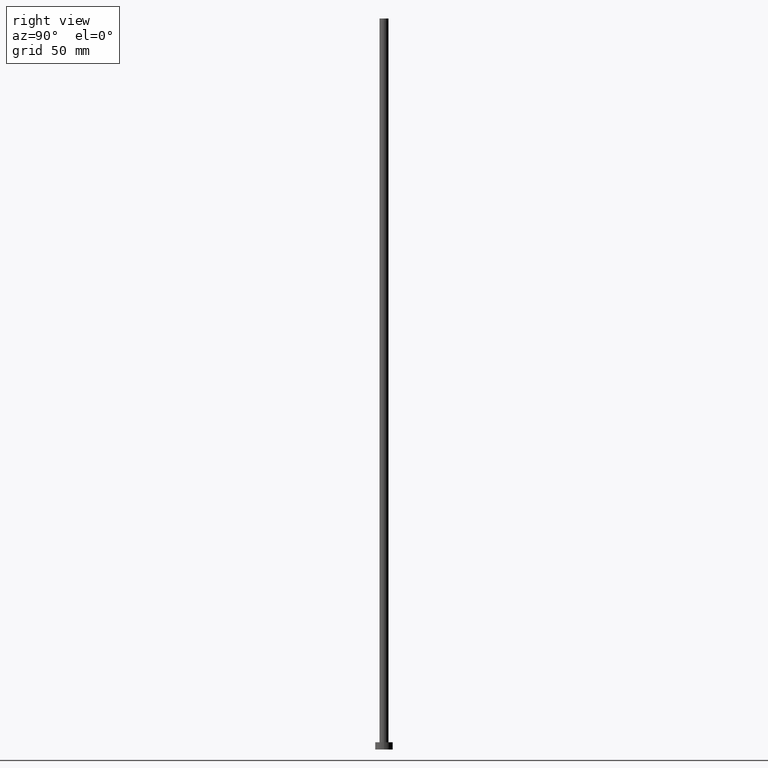
[diagram: clean part render]
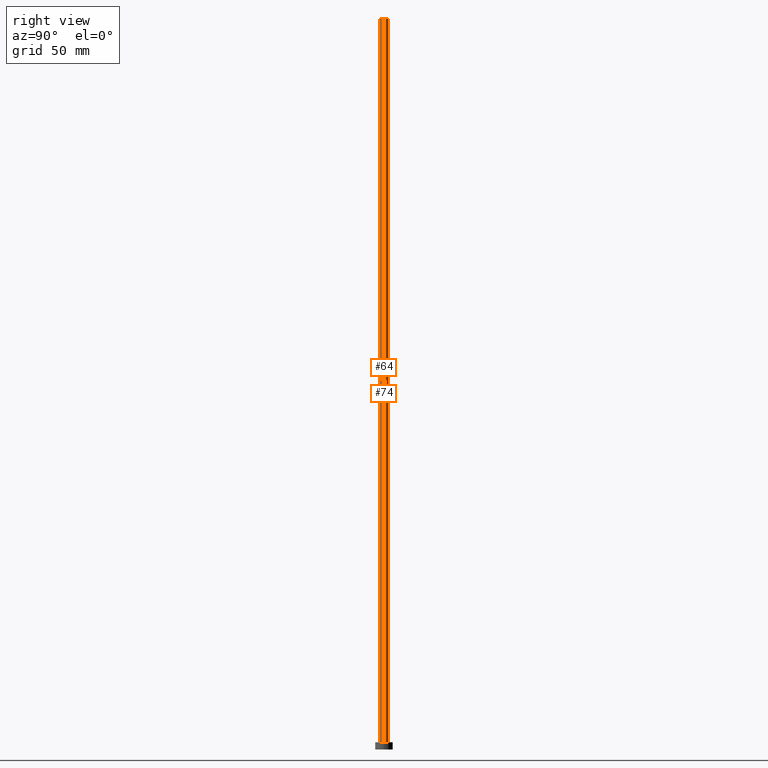
[diagram: same view with one multi-face feature highlighted, each face labeled with its STEP entity id]
A machine part, right view. The highlighted faces form ONE feature: a constant-radius fillet chain: 2 tangent blend faces with common blend radius 3.1 mm. The faces share edges in the B-rep.
Their STEP definitions:
[1] entity #74 (Cylinder):
#3 = AXIS2_PLACEMENT_3D ( 'NONE', #55, #79, #169 ) ;
#4 = LINE ( 'NONE', #50, #254 ) ;
#5 = LINE ( 'NONE', #179, #214 ) ;
#20 = VERTEX_POINT ( 'NONE', #87 ) ;
#21 = EDGE_CURVE ( 'NONE', #204, #20, #5, .T. ) ;
#24 = ORIENTED_EDGE ( 'NONE', *, *, #31, .F. ) ;
#31 = EDGE_CURVE ( 'NONE', #143, #160, #4, .T. ) ;
#36 = DIRECTION ( 'NONE',  ( -1.000000000000000000, 0.000000000000000000, 0.000000000000000000 ) ) ;
#40 = CIRCLE ( 'NONE', #62, 3.100000000000000089 ) ;
#43 = CIRCLE ( 'NONE', #3, 3.100000000000000089 ) ;
#50 = CARTESIAN_POINT ( 'NONE',  ( -3.100000000000000089, 0.000000000000000000, 500.0000000000000000 ) ) ;
#52 = CYLINDRICAL_SURFACE ( 'NONE', #202, 3.100000000000000089 ) ;
#55 = CARTESIAN_POINT ( 'NONE',  ( 0.000000000000000000, 0.000000000000000000, 500.0000000000000000 ) ) ;
#62 = AXIS2_PLACEMENT_3D ( 'NONE', #111, #88, #115 ) ;
#74 = ADVANCED_FACE ( 'NONE', ( #149 ), #52, .T. ) ;
#79 = DIRECTION ( 'NONE',  ( 0.000000000000000000, 0.000000000000000000, 1.000000000000000000 ) ) ;
#83 = DIRECTION ( 'NONE',  ( -0.000000000000000000, -0.000000000000000000, -1.000000000000000000 ) ) ;
#87 = CARTESIAN_POINT ( 'NONE',  ( 3.100000000000000089, 3.796405077356794918E-16, 5.000000000000000000 ) ) ;
#88 = DIRECTION ( 'NONE',  ( 0.000000000000000000, 0.000000000000000000, 1.000000000000000000 ) ) ;
#89 = CARTESIAN_POINT ( 'NONE',  ( -3.100000000000000089, 0.000000000000000000, 5.000000000000000000 ) ) ;
#93 = EDGE_CURVE ( 'NONE', #20, #160, #40, .T. ) ;
#103 = ORIENTED_EDGE ( 'NONE', *, *, #21, .T. ) ;
#111 = CARTESIAN_POINT ( 'NONE',  ( 0.000000000000000000, 0.000000000000000000, 5.000000000000000000 ) ) ;
#115 = DIRECTION ( 'NONE',  ( 1.000000000000000000, 0.000000000000000000, 0.000000000000000000 ) ) ;
#142 = DIRECTION ( 'NONE',  ( -0.000000000000000000, -0.000000000000000000, -1.000000000000000000 ) ) ;
#143 = VERTEX_POINT ( 'NONE', #147 ) ;
#145 = ORIENTED_EDGE ( 'NONE', *, *, #172, .F. ) ;
#146 = ORIENTED_EDGE ( 'NONE', *, *, #93, .T. ) ;
#147 = CARTESIAN_POINT ( 'NONE',  ( -3.100000000000000089, 0.000000000000000000, 500.0000000000000000 ) ) ;
#149 = FACE_OUTER_BOUND ( 'NONE', #158, .T. ) ;
#158 = EDGE_LOOP ( 'NONE', ( #145, #103, #146, #24 ) ) ;
#160 = VERTEX_POINT ( 'NONE', #89 ) ;
#169 = DIRECTION ( 'NONE',  ( 1.000000000000000000, 0.000000000000000000, 0.000000000000000000 ) ) ;
#172 = EDGE_CURVE ( 'NONE', #204, #143, #43, .T. ) ;
#179 = CARTESIAN_POINT ( 'NONE',  ( 3.100000000000000089, 3.796405077356794918E-16, 500.0000000000000000 ) ) ;
#202 = AXIS2_PLACEMENT_3D ( 'NONE', #209, #206, #36 ) ;
#204 = VERTEX_POINT ( 'NONE', #228 ) ;
#206 = DIRECTION ( 'NONE',  ( -0.000000000000000000, -0.000000000000000000, -1.000000000000000000 ) ) ;
#209 = CARTESIAN_POINT ( 'NONE',  ( 0.000000000000000000, 0.000000000000000000, 500.0000000000000000 ) ) ;
#214 = VECTOR ( 'NONE', #142, 1000.000000000000000 ) ;
#228 = CARTESIAN_POINT ( 'NONE',  ( 3.100000000000000089, 3.796405077356794918E-16, 500.0000000000000000 ) ) ;
#254 = VECTOR ( 'NONE', #83, 1000.000000000000000 ) ;
[2] entity #64 (Cylinder):
#4 = LINE ( 'NONE', #50, #254 ) ;
#5 = LINE ( 'NONE', #179, #214 ) ;
#20 = VERTEX_POINT ( 'NONE', #87 ) ;
#21 = EDGE_CURVE ( 'NONE', #204, #20, #5, .T. ) ;
#29 = ORIENTED_EDGE ( 'NONE', *, *, #180, .F. ) ;
#31 = EDGE_CURVE ( 'NONE', #143, #160, #4, .T. ) ;
#50 = CARTESIAN_POINT ( 'NONE',  ( -3.100000000000000089, 0.000000000000000000, 500.0000000000000000 ) ) ;
#51 = ORIENTED_EDGE ( 'NONE', *, *, #31, .T. ) ;
#64 = ADVANCED_FACE ( 'NONE', ( #144 ), #127, .T. ) ;
#67 = CARTESIAN_POINT ( 'NONE',  ( 0.000000000000000000, 0.000000000000000000, 500.0000000000000000 ) ) ;
#72 = DIRECTION ( 'NONE',  ( -1.000000000000000000, 0.000000000000000000, 0.000000000000000000 ) ) ;
#77 = DIRECTION ( 'NONE',  ( 1.000000000000000000, 0.000000000000000000, 0.000000000000000000 ) ) ;
#83 = DIRECTION ( 'NONE',  ( -0.000000000000000000, -0.000000000000000000, -1.000000000000000000 ) ) ;
#87 = CARTESIAN_POINT ( 'NONE',  ( 3.100000000000000089, 3.796405077356794918E-16, 5.000000000000000000 ) ) ;
#89 = CARTESIAN_POINT ( 'NONE',  ( -3.100000000000000089, 0.000000000000000000, 5.000000000000000000 ) ) ;
#91 = DIRECTION ( 'NONE',  ( 1.000000000000000000, 0.000000000000000000, 0.000000000000000000 ) ) ;
#92 = CIRCLE ( 'NONE', #229, 3.100000000000000089 ) ;
#118 = DIRECTION ( 'NONE',  ( 0.000000000000000000, 0.000000000000000000, 1.000000000000000000 ) ) ;
#127 = CYLINDRICAL_SURFACE ( 'NONE', #165, 3.100000000000000089 ) ;
#128 = DIRECTION ( 'NONE',  ( -0.000000000000000000, -0.000000000000000000, -1.000000000000000000 ) ) ;
#130 = AXIS2_PLACEMENT_3D ( 'NONE', #230, #118, #77 ) ;
#142 = DIRECTION ( 'NONE',  ( -0.000000000000000000, -0.000000000000000000, -1.000000000000000000 ) ) ;
#143 = VERTEX_POINT ( 'NONE', #147 ) ;
#144 = FACE_OUTER_BOUND ( 'NONE', #244, .T. ) ;
#147 = CARTESIAN_POINT ( 'NONE',  ( -3.100000000000000089, 0.000000000000000000, 500.0000000000000000 ) ) ;
#152 = DIRECTION ( 'NONE',  ( 0.000000000000000000, 0.000000000000000000, 1.000000000000000000 ) ) ;
#160 = VERTEX_POINT ( 'NONE', #89 ) ;
#165 = AXIS2_PLACEMENT_3D ( 'NONE', #67, #128, #72 ) ;
#179 = CARTESIAN_POINT ( 'NONE',  ( 3.100000000000000089, 3.796405077356794918E-16, 500.0000000000000000 ) ) ;
#180 = EDGE_CURVE ( 'NONE', #143, #204, #92, .T. ) ;
#185 = ORIENTED_EDGE ( 'NONE', *, *, #21, .F. ) ;
#200 = ORIENTED_EDGE ( 'NONE', *, *, #220, .T. ) ;
#204 = VERTEX_POINT ( 'NONE', #228 ) ;
#214 = VECTOR ( 'NONE', #142, 1000.000000000000000 ) ;
#220 = EDGE_CURVE ( 'NONE', #160, #20, #234, .T. ) ;
#227 = CARTESIAN_POINT ( 'NONE',  ( 0.000000000000000000, 0.000000000000000000, 500.0000000000000000 ) ) ;
#228 = CARTESIAN_POINT ( 'NONE',  ( 3.100000000000000089, 3.796405077356794918E-16, 500.0000000000000000 ) ) ;
#229 = AXIS2_PLACEMENT_3D ( 'NONE', #227, #152, #91 ) ;
#230 = CARTESIAN_POINT ( 'NONE',  ( 0.000000000000000000, 0.000000000000000000, 5.000000000000000000 ) ) ;
#234 = CIRCLE ( 'NONE', #130, 3.100000000000000089 ) ;
#244 = EDGE_LOOP ( 'NONE', ( #185, #29, #51, #200 ) ) ;
#254 = VECTOR ( 'NONE', #83, 1000.000000000000000 ) ;